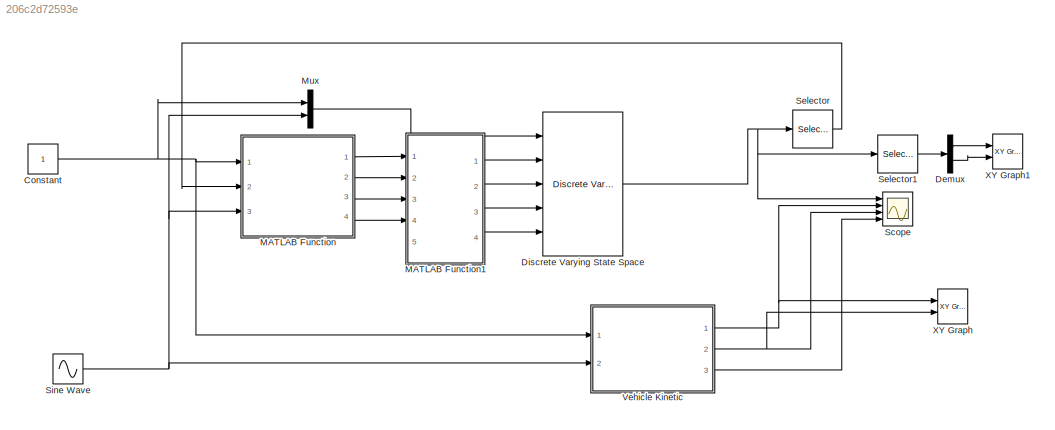
MODEL slx_206c2d72593e
KIND model
CONFIG AbsTol = auto
CONFIG EnableMultiTasking = off
CONFIG FixedStep = 0.1
CONFIG MaxStep = auto
CONFIG MinStep = auto
CONFIG RelTol = 1e-3
CONFIG SampleTimeConstraint = Unconstrained
CONFIG Solver = FixedStepAuto
CONFIG SolverName = FixedStepAuto
CONFIG StartTime = 0.0
CONFIG StopTime = 100
BLOCK [Constant] Constant
BLOCK [Demux] Demux
  DisplayOption = bar
  Outputs = 2
  Ports = [1, 2]
BLOCK [Reference] Discrete Varying State Space  REF=cstblocks/Linear Parameter Varying/Discrete Varying State Space
  Ports = [5, 1]
  SourceBlock = cstblocks/Linear Parameter Varying/Discrete Varying State Space
  SourceProductBaseCode = CT
  SourceProductName = Control System Toolbox
  SourceType = Discrete Varying State Space
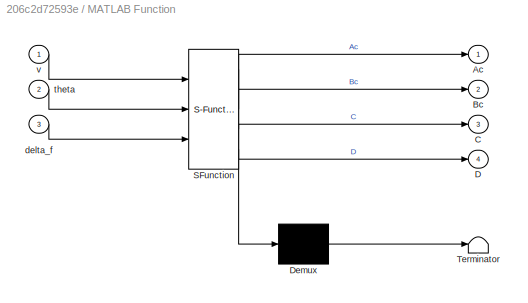
BLOCK [SubSystem] MATLAB Function
  ErrorFcn = Stateflow.Translate.translate
  PermitHierarchicalResolution = ExplicitOnly
  Ports = [3, 4]
  RequestExecContextInheritance = off
  SFBlockType = MATLAB Function
  TreatAsAtomicUnit = on
BLOCK [Demux] MATLAB Function/ Demux 
  Outputs = 1
  Ports = [1, 1]
BLOCK [S-Function] MATLAB Function/ SFunction 
  EnableBusSupport = on
  FunctionName = sf_sfun
  PortCounts = [3 5]
  Ports = [3, 5]
  SFcnIsStateOwnerBlock = off
  SFunctionDeploymentMode = off
  Tag = Stateflow S-Function kin_test 2
BLOCK [Terminator] MATLAB Function/ Terminator 
BLOCK [Outport] MATLAB Function/Ac
  IconDisplay = Port number
BLOCK [Outport] MATLAB Function/Bc
  IconDisplay = Port number
  Port = 2
BLOCK [Outport] MATLAB Function/C
  IconDisplay = Port number
  Port = 3
BLOCK [Outport] MATLAB Function/D
  IconDisplay = Port number
  Port = 4
BLOCK [Inport] MATLAB Function/delta_f
  IconDisplay = Port number
  Port = 3
BLOCK [Inport] MATLAB Function/theta
  IconDisplay = Port number
  Port = 2
BLOCK [Inport] MATLAB Function/v
  IconDisplay = Port number
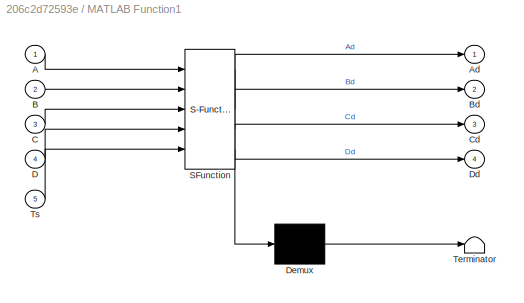
BLOCK [SubSystem] MATLAB Function1
  ErrorFcn = Stateflow.Translate.translate
  PermitHierarchicalResolution = ExplicitOnly
  Ports = [5, 4]
  RequestExecContextInheritance = off
  SFBlockType = MATLAB Function
  TreatAsAtomicUnit = on
BLOCK [Demux] MATLAB Function1/ Demux 
  Outputs = 1
  Ports = [1, 1]
BLOCK [S-Function] MATLAB Function1/ SFunction 
  EnableBusSupport = on
  FunctionName = sf_sfun
  PortCounts = [5 5]
  Ports = [5, 5]
  SFcnIsStateOwnerBlock = off
  SFunctionDeploymentMode = off
  Tag = Stateflow S-Function kin_test 1
BLOCK [Terminator] MATLAB Function1/ Terminator 
BLOCK [Inport] MATLAB Function1/A
  IconDisplay = Port number
BLOCK [Outport] MATLAB Function1/Ad
  IconDisplay = Port number
BLOCK [Inport] MATLAB Function1/B
  IconDisplay = Port number
  Port = 2
BLOCK [Outport] MATLAB Function1/Bd
  IconDisplay = Port number
  Port = 2
BLOCK [Inport] MATLAB Function1/C
  IconDisplay = Port number
  Port = 3
BLOCK [Outport] MATLAB Function1/Cd
  IconDisplay = Port number
  Port = 3
BLOCK [Inport] MATLAB Function1/D
  IconDisplay = Port number
  Port = 4
BLOCK [Outport] MATLAB Function1/Dd
  IconDisplay = Port number
  Port = 4
BLOCK [Inport] MATLAB Function1/Ts
  IconDisplay = Port number
  Port = 5
BLOCK [Mux] Mux
  DisplayOption = bar
  Inputs = 2
  Ports = [2, 1]
BLOCK [Scope] Scope
  Floating = off
  NumInputPorts = 4
  Ports = [4]
  ScopeSpecificationString = Simulink.scopes.TimeScopeBlockCfg('CurrentConfiguration', extmgr.ConfigurationSet(extmgr.Configuration('Core','General UI',true),extmgr.Configuration('Core','Source UI',true),extmgr.Configuration('Sources','WiredSimulink',true),extmgr.Configuration('Visuals','Time Domain',true,'SerializedDisplays',{struct('MinYLimReal','-31.2641','MaxYLimReal','16.22692','YLabelReal','','MinYLimMag','0.00000','Max...<+1710ch>
BLOCK [Selector] Selector
  IndexOptions = Index vector (dialog)
  Indices = [3]
  InputPortWidth = 3
  OutputSizes = 1
  Ports = [1, 1]
BLOCK [Selector] Selector1
  IndexOptions = Index vector (dialog)
  Indices = [1 2]
  InputPortWidth = 3
  OutputSizes = 1
  Ports = [1, 1]
BLOCK [Sin] Sine Wave
  Amplitude = 0
  Bias = deg2rad(30)
  Ports = [0, 1]
  SampleTime = 0
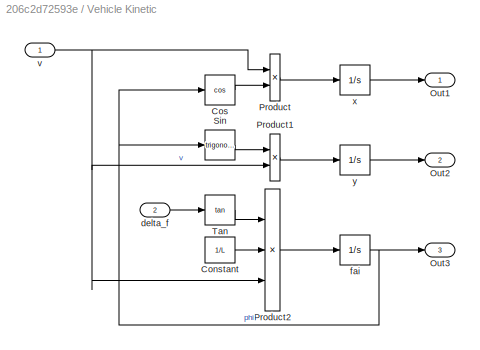
BLOCK [SubSystem] Vehicle Kinetic
  AncestorBlock = my_library/Vehicle Kinetic
  Ports = [2, 3]
  RequestExecContextInheritance = off
BLOCK [Constant] Vehicle Kinetic/Constant
  Value = 1/L
BLOCK [Trigonometry] Vehicle Kinetic/Cos
  Operator = cos
  Ports = [1, 1]
BLOCK [Outport] Vehicle Kinetic/Out1
  IconDisplay = Port number
BLOCK [Outport] Vehicle Kinetic/Out2
  IconDisplay = Port number
  Port = 2
BLOCK [Outport] Vehicle Kinetic/Out3
  IconDisplay = Port number
  Port = 3
BLOCK [Product] Vehicle Kinetic/Product
  InputSameDT = off
  OutDataTypeStr = Inherit: Inherit via internal rule
  Ports = [2, 1]
  RndMeth = Floor
  SaturateOnIntegerOverflow = off
BLOCK [Product] Vehicle Kinetic/Product1
  InputSameDT = off
  OutDataTypeStr = Inherit: Inherit via internal rule
  Ports = [2, 1]
  RndMeth = Floor
  SaturateOnIntegerOverflow = off
BLOCK [Product] Vehicle Kinetic/Product2
  InputSameDT = off
  Inputs = 3
  OutDataTypeStr = Inherit: Inherit via internal rule
  Ports = [3, 1]
  RndMeth = Floor
  SaturateOnIntegerOverflow = off
BLOCK [Trigonometry] Vehicle Kinetic/Sin
  Ports = [1, 1]
BLOCK [Trigonometry] Vehicle Kinetic/Tan
  Operator = tan
  Ports = [1, 1]
BLOCK [Inport] Vehicle Kinetic/delta_f
  IconDisplay = Port number
  Port = 2
BLOCK [Integrator] Vehicle Kinetic/fai
  InitialCondition = fai
  Ports = [1, 1]
BLOCK [Inport] Vehicle Kinetic/v
  IconDisplay = Port number
BLOCK [Integrator] Vehicle Kinetic/x
  InitialCondition = x
  Ports = [1, 1]
BLOCK [Integrator] Vehicle Kinetic/y
  InitialCondition = y
  Ports = [1, 1]
BLOCK [Reference] XY Graph  REF=simulink/Sinks/XY Graph
  Ports = [2]
  SourceBlock = simulink/Sinks/XY Graph
  SourceProductBaseCode = SL
  SourceProductName = Simulink
  SourceType = XY scope.
BLOCK [Reference] XY Graph1  REF=simulink/Sinks/XY Graph
  Ports = [2]
  SourceBlock = simulink/Sinks/XY Graph
  SourceProductBaseCode = SL
  SourceProductName = Simulink
  SourceType = XY scope.
NET Constant:1 -> MATLAB Function:1, Mux:1, Vehicle Kinetic:1
LINE Demux:1 -> XY Graph1:1
LINE Demux:2 -> XY Graph1:2
NET Discrete Varying State Space:1 -> Scope:1, Selector1:1, Selector:1
LINE MATLAB Function1:1 -> Discrete Varying State Space:2
LINE MATLAB Function1:2 -> Discrete Varying State Space:3
LINE MATLAB Function1:3 -> Discrete Varying State Space:4
LINE MATLAB Function1:4 -> Discrete Varying State Space:5
LINE MATLAB Function:1 -> MATLAB Function1:1
LINE MATLAB Function:2 -> MATLAB Function1:2
LINE MATLAB Function:3 -> MATLAB Function1:3
LINE MATLAB Function:4 -> MATLAB Function1:4
LINE Mux:1 -> Discrete Varying State Space:1
LINE Selector1:1 -> Demux:1
LINE Selector:1 -> MATLAB Function:2
NET Sine Wave:1 -> MATLAB Function:3, Mux:2, Vehicle Kinetic:2
NET Vehicle Kinetic:1 -> Scope:2, XY Graph:1
NET Vehicle Kinetic:2 -> Scope:3, XY Graph:2
LINE Vehicle Kinetic:3 -> Scope:4
note: NET lines group one-source signal fan-out (src -> all destinations, sorted); 1:1 wires keep LINE
CHART MATLAB Function1 states=1 transitions=1
  STATE_LABEL 'eML_blk_kernel()'
  STATE_LABEL 'SCRIPT:\nfunction [Ad,Bd,Cd,Dd] = fcn(A,B,C,D,Ts)\n%#codegen\nCd=C;\nDd=D;\nAd=(eye(size(A))+Ts*A/2)/(eye(size(A))-Ts*A/2);\nBd=Ts*B;\n'
CHART MATLAB Function states=1 transitions=1
  STATE_LABEL 'eML_blk_kernel()'
  STATE_LABEL 'SCRIPT:\nfunction [Ac,Bc,C,D] = fcn(v,theta,delta_f)\n%#codegen\nL=2.6;\nAc=[ 0, 0, -v*sin(theta);\n    0, 0,  v*cos(theta);\n    0, 0,             0];\nBc =[  cos(theta),                      0;\n    sin(theta),                      0;\n    tan(delta_f)/L, (v*(tan(delta_f)^2 + 1))/L];\nC=eye(3,3);\nD=zeros(3,2);\n'
